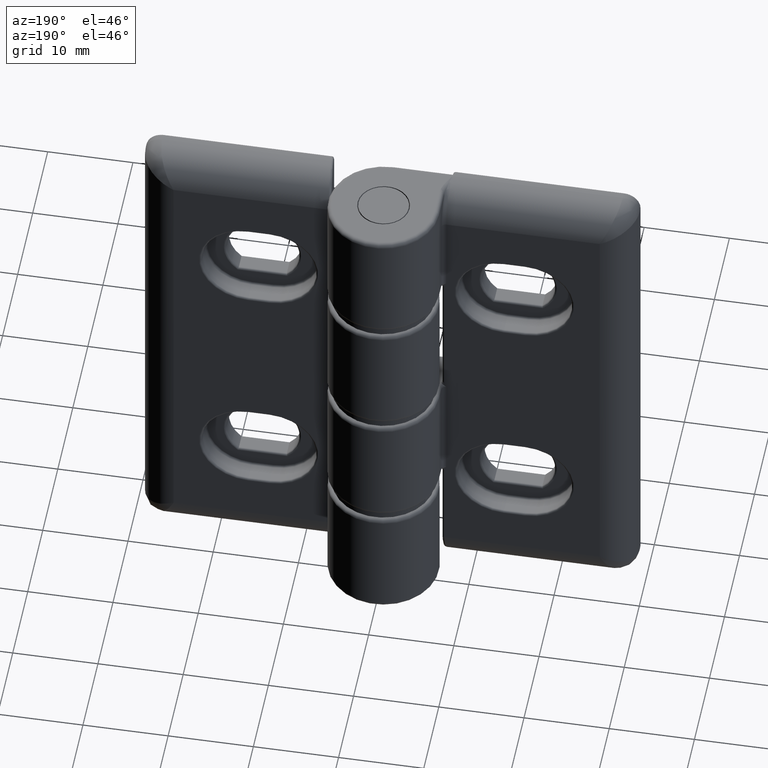
[diagram: clean part render]
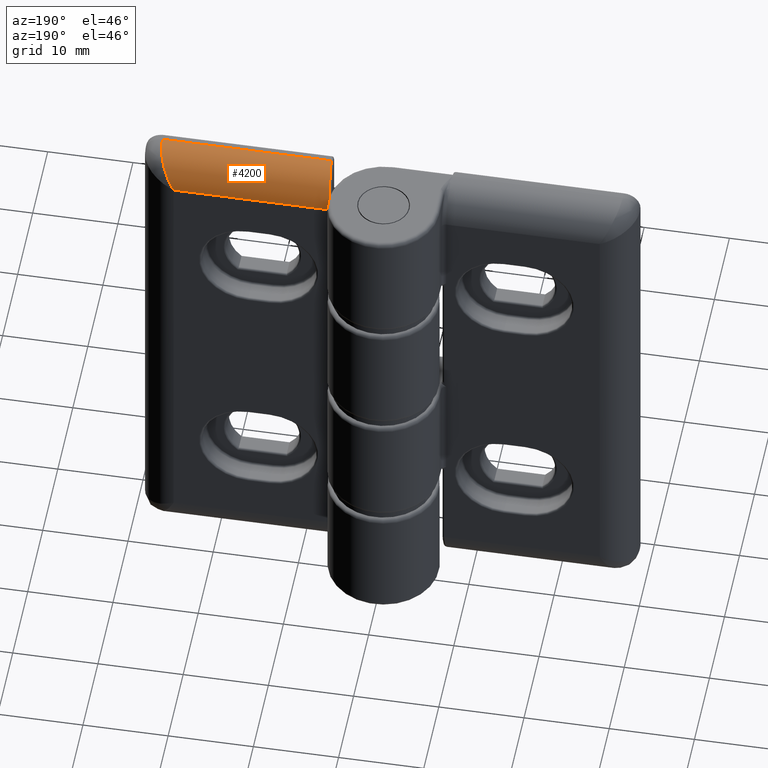
[diagram: same view with one face highlighted and labeled with its STEP entity id]
A machine part, auxiliary view. The second image highlights one B-rep face of the part: STEP entity #4200.
In plain terms, the highlighted cylindrical surface (edge-blend (fillet) strip) has radius 4 mm, axis along (1, 0, 0).
Its self-contained STEP definition (entity closure, byte-faithful):
#177=CYLINDRICAL_SURFACE('',#4553,4.);
#330=B_SPLINE_CURVE_WITH_KNOTS('',3,(#7588,#7589,#7590,#7591,#7592,#7593,
#7594,#7595,#7596,#7597,#7598),.UNSPECIFIED.,.F.,.F.,(4,1,1,1,1,1,1,1,4),
(0.,0.125,0.25,0.375,0.5,0.625,0.75,0.875,1.),.UNSPECIFIED.);
#331=B_SPLINE_CURVE_WITH_KNOTS('',3,(#7600,#7601,#7602,#7603,#7604,#7605,
#7606,#7607,#7608,#7609,#7610,#7611,#7612,#7613,#7614,#7615,#7616,#7617,
#7618,#7619,#7620,#7621,#7622,#7623,#7624,#7625,#7626,#7627,#7628,#7629,
#7630,#7631),.UNSPECIFIED.,.F.,.F.,(4,2,2,2,2,2,2,2,2,2,2,2,2,2,2,4),(0.,
0.125,0.127243550857538,0.25,0.254476629069559,0.375,0.381748072206556,
0.5,0.508999401625613,0.625,0.636262480337401,0.75,0.763505656606568,0.875,
0.890747806102753,1.),.UNSPECIFIED.);
#410=FACE_OUTER_BOUND('',#712,.T.);
#712=EDGE_LOOP('',(#3079,#3080,#3081,#3082));
#1303=LINE('',#6756,#1562);
#1349=LINE('',#7491,#1608);
#1562=VECTOR('',#5129,18.2206837461319);
#1608=VECTOR('',#5337,19.8040170790763);
#1840=VERTEX_POINT('',#6753);
#1841=VERTEX_POINT('',#6755);
#1908=VERTEX_POINT('',#7487);
#1909=VERTEX_POINT('',#7489);
#2205=EDGE_CURVE('',#1840,#1841,#1303,.T.);
#2319=EDGE_CURVE('',#1908,#1909,#1349,.T.);
#2325=EDGE_CURVE('',#1840,#1908,#330,.T.);
#2326=EDGE_CURVE('',#1841,#1909,#331,.T.);
#3079=ORIENTED_EDGE('',*,*,#2325,.T.);
#3080=ORIENTED_EDGE('',*,*,#2319,.T.);
#3081=ORIENTED_EDGE('',*,*,#2326,.F.);
#3082=ORIENTED_EDGE('',*,*,#2205,.F.);
#4200=ADVANCED_FACE('',(#410),#177,.T.);
#4553=AXIS2_PLACEMENT_3D('',#7599,#5350,#5351);
#5129=DIRECTION('',(0.999999999999986,2.31003028244104E-11,-1.65232625542699E-7));
#5337=DIRECTION('',(0.9999999999999,-4.4786529038571E-7,8.76443743372621E-10));
#5350=DIRECTION('center_axis',(1.,0.,0.));
#5351=DIRECTION('ref_axis',(0.,0.,-1.));
#6753=CARTESIAN_POINT('',(6.77931625385408,25.99999999958,2.00000301065104));
#6755=CARTESIAN_POINT('',(25.,26.,2.));
#6756=CARTESIAN_POINT('',(6.779316253854,25.99999999958,2.000003010651));
#7487=CARTESIAN_POINT('',(7.19598292059964,29.99999805777,6.00000000067377));
#7489=CARTESIAN_POINT('',(26.9999999996618,29.9999620114396,6.0000000325394));
#7491=CARTESIAN_POINT('',(7.195982920541,29.99999741036,6.000000000335));
#7588=CARTESIAN_POINT('Ctrl Pts',(6.779316253854,25.99999999958,2.000003010651));
#7589=CARTESIAN_POINT('Ctrl Pts',(6.77932037752,26.26095440317,2.000021252071));
#7590=CARTESIAN_POINT('Ctrl Pts',(6.784653696586,26.78297354269,2.051256786912));
#7591=CARTESIAN_POINT('Ctrl Pts',(6.808365700326,27.53593923194,2.278864961721));
#7592=CARTESIAN_POINT('Ctrl Pts',(6.846959117419,28.23155443704,2.649374387996));
#7593=CARTESIAN_POINT('Ctrl Pts',(6.898957716517,28.84183344036,3.148557038598));
#7594=CARTESIAN_POINT('Ctrl Pts',(6.96244364489,29.3438184456,3.758024253883));
#7595=CARTESIAN_POINT('Ctrl Pts',(7.035050684855,29.71767352309,4.455045866343));
#7596=CARTESIAN_POINT('Ctrl Pts',(7.113900779835,29.94806870974,5.212015278034));
#7597=CARTESIAN_POINT('Ctrl Pts',(7.168612560966,29.99998022637,5.737243048034));
#7598=CARTESIAN_POINT('Ctrl Pts',(7.195982920541,29.99999741036,6.000000000335));
#7599=CARTESIAN_POINT('Origin',(-52.78624437387,26.,6.));
#7600=CARTESIAN_POINT('Ctrl Pts',(25.,26.,1.99999999999967));
#7601=CARTESIAN_POINT('Ctrl Pts',(25.1369962260097,26.2719906720997,2.00017686031364));
#7602=CARTESIAN_POINT('Ctrl Pts',(25.2725039764732,26.5445332904655,2.02763303546468));
#7603=CARTESIAN_POINT('Ctrl Pts',(25.4097255982594,26.819535225117,2.08485131206691));
#7604=CARTESIAN_POINT('Ctrl Pts',(25.4121448620934,26.8243832850461,2.08586942879543));
#7605=CARTESIAN_POINT('Ctrl Pts',(25.5469213093543,27.0944482366163,2.14310906031934));
#7606=CARTESIAN_POINT('Ctrl Pts',(25.6784765503888,27.3570566294231,2.22749238788485));
#7607=CARTESIAN_POINT('Ctrl Pts',(25.8073083619117,27.6145134301592,2.34029581523949));
#7608=CARTESIAN_POINT('Ctrl Pts',(25.8118315846682,27.6235535994714,2.34429672414634));
#7609=CARTESIAN_POINT('Ctrl Pts',(25.9378615750221,27.8754619693226,2.45690017967717));
#7610=CARTESIAN_POINT('Ctrl Pts',(26.0523232695705,28.1046699106241,2.5885430531682));
#7611=CARTESIAN_POINT('Ctrl Pts',(26.1641203088057,28.3283644452334,2.74747167671528));
#7612=CARTESIAN_POINT('Ctrl Pts',(26.170020904212,28.3401713010195,2.75595727355047));
#7613=CARTESIAN_POINT('Ctrl Pts',(26.2788241636141,28.5578752561014,2.91421987510051));
#7614=CARTESIAN_POINT('Ctrl Pts',(26.3734010212757,28.746931694706,3.08175461138092));
#7615=CARTESIAN_POINT('Ctrl Pts',(26.4648177617587,28.9297395555864,3.2765836671592));
#7616=CARTESIAN_POINT('Ctrl Pts',(26.4712268351405,28.9425586170154,3.29044107612801));
#7617=CARTESIAN_POINT('Ctrl Pts',(26.559481204259,29.1190875224142,3.48398640737262));
#7618=CARTESIAN_POINT('Ctrl Pts',(26.6320733607756,29.2643948801844,3.67615335898004));
#7619=CARTESIAN_POINT('Ctrl Pts',(26.7011011372072,29.4024166017499,3.89663479703686));
#7620=CARTESIAN_POINT('Ctrl Pts',(26.7071171318835,29.4144489260885,3.91623088880463));
#7621=CARTESIAN_POINT('Ctrl Pts',(26.7728828739589,29.5459801405225,4.13464089606082));
#7622=CARTESIAN_POINT('Ctrl Pts',(26.8234310306718,29.6470197739028,4.34130463366816));
#7623=CARTESIAN_POINT('Ctrl Pts',(26.8695029252042,29.739102261423,4.57876044264715));
#7624=CARTESIAN_POINT('Ctrl Pts',(26.8742600982969,29.7486101258156,4.60404177388076));
#7625=CARTESIAN_POINT('Ctrl Pts',(26.9170619787542,29.8341576744715,4.83875710958091));
#7626=CARTESIAN_POINT('Ctrl Pts',(26.9462664824349,29.8924692010485,5.05293916398711));
#7627=CARTESIAN_POINT('Ctrl Pts',(26.9692085916678,29.9383615726893,5.29974963193069));
#7628=CARTESIAN_POINT('Ctrl Pts',(26.9718706596367,29.9436753225714,5.33033038020347));
#7629=CARTESIAN_POINT('Ctrl Pts',(26.99153028409,29.9829380453517,5.57336792048622));
#7630=CARTESIAN_POINT('Ctrl Pts',(27.0000208800508,29.9998430083688,5.78736522665128));
#7631=CARTESIAN_POINT('Ctrl Pts',(26.9999999996618,29.9999620114396,6.0000000325394));